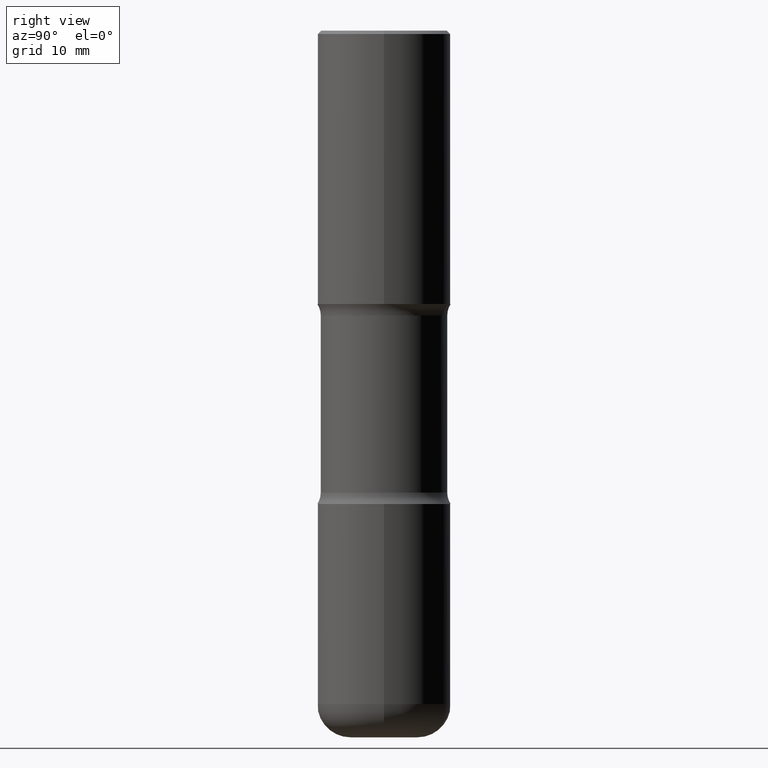
[diagram: clean part render]
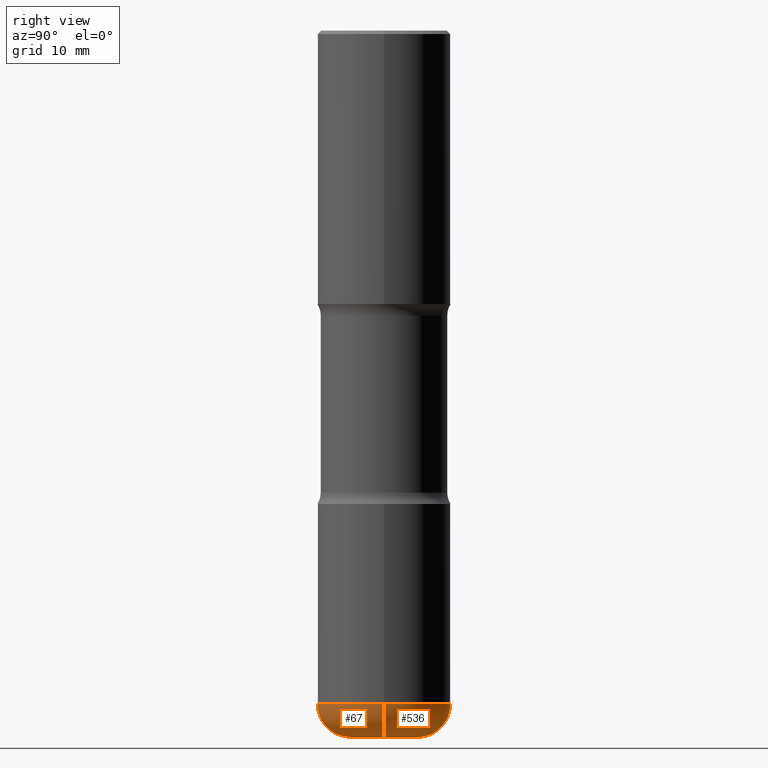
[diagram: same view with one multi-face feature highlighted, each face labeled with its STEP entity id]
A machine part, right view. The highlighted faces form ONE feature: a constant-radius fillet chain: 2 tangent blend faces with common blend radius 5.0013 mm. The faces share edges in the B-rep.
Their STEP definitions:
[1] entity #536 (Torus):
#19 = EDGE_LOOP ( 'NONE', ( #74, #60, #300, #379 ) ) ;
#26 = CIRCLE ( 'NONE', #305, 0.1968000000000006133 ) ;
#30 = EDGE_CURVE ( 'NONE', #221, #497, #374, .T. ) ;
#60 = ORIENTED_EDGE ( 'NONE', *, *, #469, .T. ) ;
#61 = CARTESIAN_POINT ( 'NONE',  ( 9.723917614033958359E-29, -1.388317724764199912E-14, -3.976299999999999724 ) ) ;
#74 = ORIENTED_EDGE ( 'NONE', *, *, #557, .T. ) ;
#79 = DIRECTION ( 'NONE',  ( -6.982962677686266711E-15, -1.000000000000000000, 3.491481338843145583E-15 ) ) ;
#92 = CIRCLE ( 'NONE', #173, 0.3937000000000006605 ) ;
#122 = DIRECTION ( 'NONE',  ( -1.000000000000000000, 7.105427357601006592E-15, 0.000000000000000000 ) ) ;
#126 = CARTESIAN_POINT ( 'NONE',  ( 0.1968000000000005856, -1.525742430261066195E-14, -3.976299999999999724 ) ) ;
#134 = AXIS2_PLACEMENT_3D ( 'NONE', #126, #79, #424 ) ;
#153 = TOROIDAL_SURFACE ( 'NONE', #328, 0.1968000000000005856, 0.1969000000000001582 ) ;
#160 = CARTESIAN_POINT ( 'NONE',  ( 0.3937000000000007160, -1.663236965384708707E-14, -3.976299999999999724 ) ) ;
#173 = AXIS2_PLACEMENT_3D ( 'NONE', #61, #235, #395 ) ;
#200 = DIRECTION ( 'NONE',  ( -2.445468806185136597E-29, 3.491481338843145583E-15, 1.000000000000000000 ) ) ;
#203 = CARTESIAN_POINT ( 'NONE',  ( -0.3937000000000007160, -1.108577049695447881E-14, -3.976299999999999724 ) ) ;
#208 = AXIS2_PLACEMENT_3D ( 'NONE', #507, #381, #122 ) ;
#221 = VERTEX_POINT ( 'NONE', #224 ) ;
#224 = CARTESIAN_POINT ( 'NONE',  ( 0.1968000000000006133, -1.594489697822887608E-14, -4.173200000000000465 ) ) ;
#235 = DIRECTION ( 'NONE',  ( -2.445468806185136597E-29, 3.491481338843145583E-15, 1.000000000000000000 ) ) ;
#251 = CARTESIAN_POINT ( 'NONE',  ( 9.723917614033958359E-29, -1.388317724764199912E-14, -3.976299999999999724 ) ) ;
#274 = VERTEX_POINT ( 'NONE', #475 ) ;
#278 = FACE_OUTER_BOUND ( 'NONE', #19, .T. ) ;
#300 = ORIENTED_EDGE ( 'NONE', *, *, #370, .F. ) ;
#305 = AXIS2_PLACEMENT_3D ( 'NONE', #546, #200, #503 ) ;
#328 = AXIS2_PLACEMENT_3D ( 'NONE', #251, #423, #454 ) ;
#342 = CIRCLE ( 'NONE', #208, 0.1969000000000001860 ) ;
#370 = EDGE_CURVE ( 'NONE', #497, #531, #92, .T. ) ;
#374 = CIRCLE ( 'NONE', #134, 0.1969000000000001860 ) ;
#379 = ORIENTED_EDGE ( 'NONE', *, *, #30, .F. ) ;
#381 = DIRECTION ( 'NONE',  ( 7.105427357601001859E-15, 1.000000000000000000, -3.491481338843145583E-15 ) ) ;
#395 = DIRECTION ( 'NONE',  ( 1.000000000000000000, -6.982962677686266711E-15, 0.000000000000000000 ) ) ;
#423 = DIRECTION ( 'NONE',  ( -2.445468806185136597E-29, 3.491481338843145583E-15, 1.000000000000000000 ) ) ;
#424 = DIRECTION ( 'NONE',  ( 1.000000000000000000, -6.982962677686268288E-15, 0.000000000000000000 ) ) ;
#454 = DIRECTION ( 'NONE',  ( 1.000000000000000000, -6.982962677686264344E-15, 4.883557194083112340E-29 ) ) ;
#469 = EDGE_CURVE ( 'NONE', #274, #531, #342, .T. ) ;
#475 = CARTESIAN_POINT ( 'NONE',  ( -0.1968000000000006133, -1.212903615811940557E-14, -4.173200000000000465 ) ) ;
#497 = VERTEX_POINT ( 'NONE', #160 ) ;
#503 = DIRECTION ( 'NONE',  ( 1.000000000000000000, -6.982962677686269866E-15, 0.000000000000000000 ) ) ;
#507 = CARTESIAN_POINT ( 'NONE',  ( -0.1968000000000005856, -1.248482914366611818E-14, -3.976299999999999724 ) ) ;
#531 = VERTEX_POINT ( 'NONE', #203 ) ;
#536 = ADVANCED_FACE ( 'NONE', ( #278 ), #153, .T. ) ;
#546 = CARTESIAN_POINT ( 'NONE',  ( 1.020543042197181255E-28, -1.457064992326021483E-14, -4.173200000000000465 ) ) ;
#557 = EDGE_CURVE ( 'NONE', #221, #274, #26, .T. ) ;
[2] entity #67 (Torus):
#30 = EDGE_CURVE ( 'NONE', #221, #497, #374, .T. ) ;
#67 = ADVANCED_FACE ( 'NONE', ( #414 ), #117, .T. ) ;
#79 = DIRECTION ( 'NONE',  ( -6.982962677686266711E-15, -1.000000000000000000, 3.491481338843145583E-15 ) ) ;
#80 = DIRECTION ( 'NONE',  ( 1.000000000000000000, -6.982962677686264344E-15, 4.883557194083112340E-29 ) ) ;
#82 = AXIS2_PLACEMENT_3D ( 'NONE', #511, #129, #80 ) ;
#94 = AXIS2_PLACEMENT_3D ( 'NONE', #461, #413, #543 ) ;
#117 = TOROIDAL_SURFACE ( 'NONE', #82, 0.1968000000000005856, 0.1969000000000001582 ) ;
#122 = DIRECTION ( 'NONE',  ( -1.000000000000000000, 7.105427357601006592E-15, 0.000000000000000000 ) ) ;
#126 = CARTESIAN_POINT ( 'NONE',  ( 0.1968000000000005856, -1.525742430261066195E-14, -3.976299999999999724 ) ) ;
#129 = DIRECTION ( 'NONE',  ( -2.445468806185136597E-29, 3.491481338843145583E-15, 1.000000000000000000 ) ) ;
#134 = AXIS2_PLACEMENT_3D ( 'NONE', #126, #79, #424 ) ;
#152 = CIRCLE ( 'NONE', #398, 0.1968000000000006133 ) ;
#160 = CARTESIAN_POINT ( 'NONE',  ( 0.3937000000000007160, -1.663236965384708707E-14, -3.976299999999999724 ) ) ;
#181 = CARTESIAN_POINT ( 'NONE',  ( 1.020543042197181255E-28, -1.457064992326021483E-14, -4.173200000000000465 ) ) ;
#203 = CARTESIAN_POINT ( 'NONE',  ( -0.3937000000000007160, -1.108577049695447881E-14, -3.976299999999999724 ) ) ;
#208 = AXIS2_PLACEMENT_3D ( 'NONE', #507, #381, #122 ) ;
#214 = EDGE_CURVE ( 'NONE', #274, #221, #152, .T. ) ;
#221 = VERTEX_POINT ( 'NONE', #224 ) ;
#223 = CIRCLE ( 'NONE', #94, 0.3937000000000006605 ) ;
#224 = CARTESIAN_POINT ( 'NONE',  ( 0.1968000000000006133, -1.594489697822887608E-14, -4.173200000000000465 ) ) ;
#261 = DIRECTION ( 'NONE',  ( 1.000000000000000000, -6.982962677686269866E-15, 0.000000000000000000 ) ) ;
#274 = VERTEX_POINT ( 'NONE', #475 ) ;
#289 = ORIENTED_EDGE ( 'NONE', *, *, #469, .F. ) ;
#299 = DIRECTION ( 'NONE',  ( -2.445468806185136597E-29, 3.491481338843145583E-15, 1.000000000000000000 ) ) ;
#310 = ORIENTED_EDGE ( 'NONE', *, *, #214, .T. ) ;
#319 = ORIENTED_EDGE ( 'NONE', *, *, #496, .F. ) ;
#342 = CIRCLE ( 'NONE', #208, 0.1969000000000001860 ) ;
#374 = CIRCLE ( 'NONE', #134, 0.1969000000000001860 ) ;
#381 = DIRECTION ( 'NONE',  ( 7.105427357601001859E-15, 1.000000000000000000, -3.491481338843145583E-15 ) ) ;
#382 = EDGE_LOOP ( 'NONE', ( #289, #310, #547, #319 ) ) ;
#398 = AXIS2_PLACEMENT_3D ( 'NONE', #181, #299, #261 ) ;
#413 = DIRECTION ( 'NONE',  ( -2.445468806185136597E-29, 3.491481338843145583E-15, 1.000000000000000000 ) ) ;
#414 = FACE_OUTER_BOUND ( 'NONE', #382, .T. ) ;
#424 = DIRECTION ( 'NONE',  ( 1.000000000000000000, -6.982962677686268288E-15, 0.000000000000000000 ) ) ;
#461 = CARTESIAN_POINT ( 'NONE',  ( 9.723917614033958359E-29, -1.388317724764199912E-14, -3.976299999999999724 ) ) ;
#469 = EDGE_CURVE ( 'NONE', #274, #531, #342, .T. ) ;
#475 = CARTESIAN_POINT ( 'NONE',  ( -0.1968000000000006133, -1.212903615811940557E-14, -4.173200000000000465 ) ) ;
#496 = EDGE_CURVE ( 'NONE', #531, #497, #223, .T. ) ;
#497 = VERTEX_POINT ( 'NONE', #160 ) ;
#507 = CARTESIAN_POINT ( 'NONE',  ( -0.1968000000000005856, -1.248482914366611818E-14, -3.976299999999999724 ) ) ;
#511 = CARTESIAN_POINT ( 'NONE',  ( 9.723917614033958359E-29, -1.388317724764199912E-14, -3.976299999999999724 ) ) ;
#531 = VERTEX_POINT ( 'NONE', #203 ) ;
#543 = DIRECTION ( 'NONE',  ( 1.000000000000000000, -6.982962677686266711E-15, 0.000000000000000000 ) ) ;
#547 = ORIENTED_EDGE ( 'NONE', *, *, #30, .T. ) ;